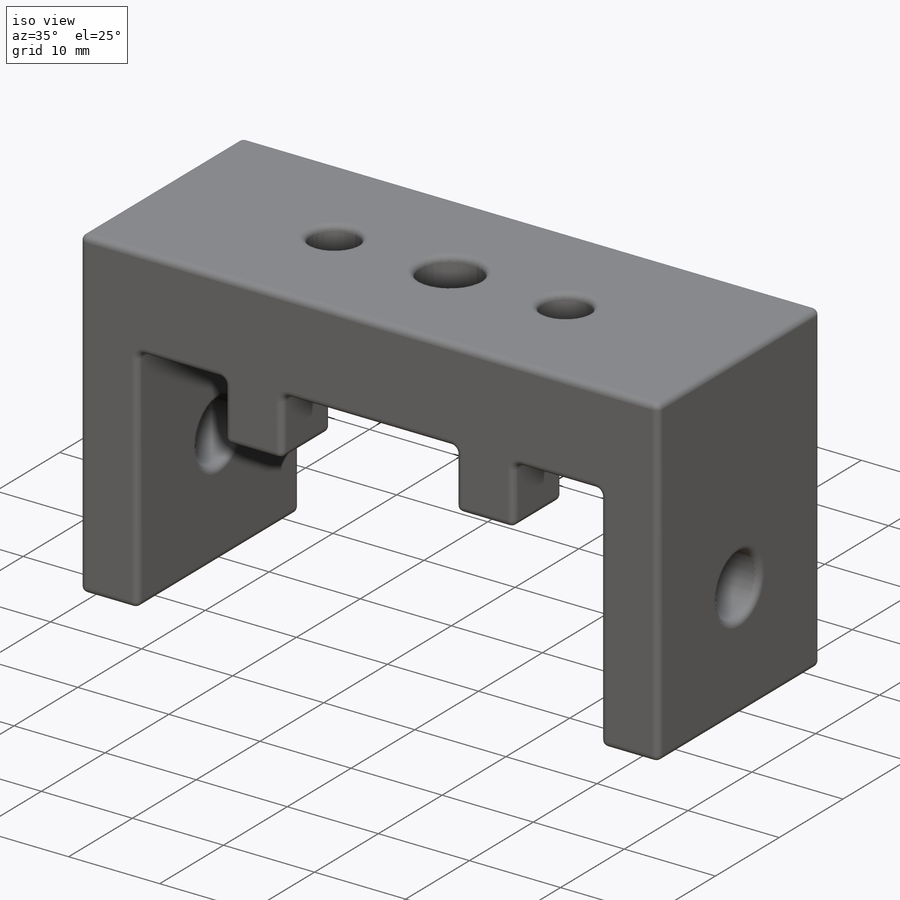
[diagram: iso view]
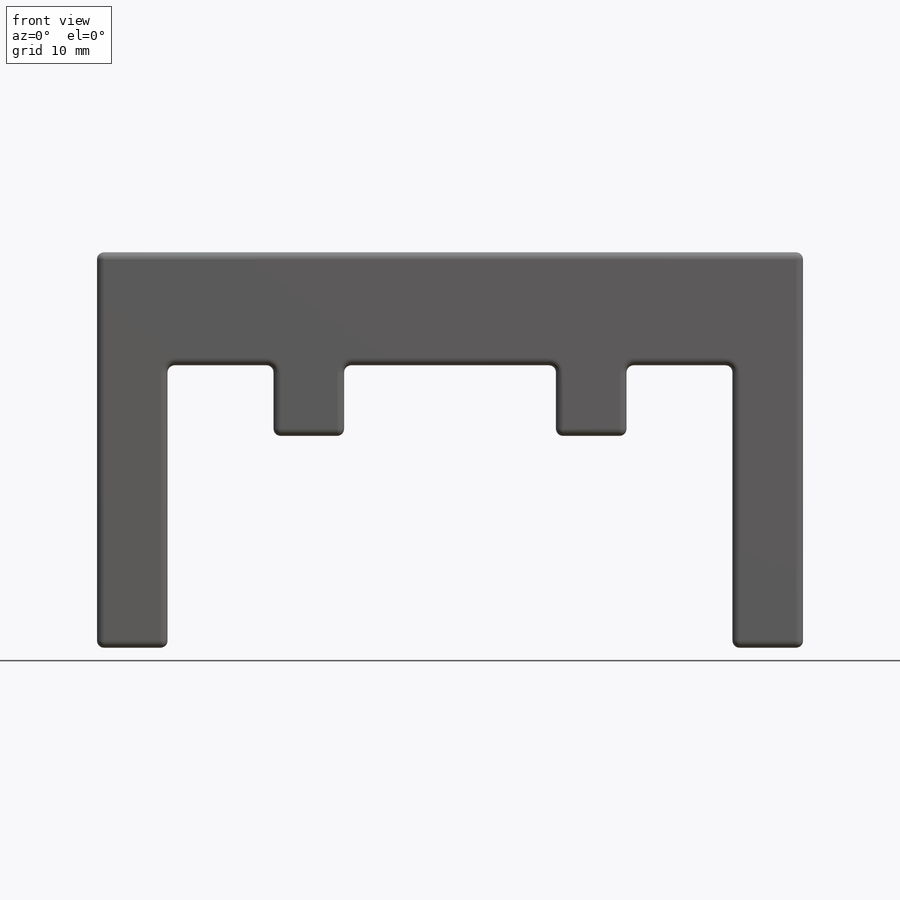
[diagram: front view]
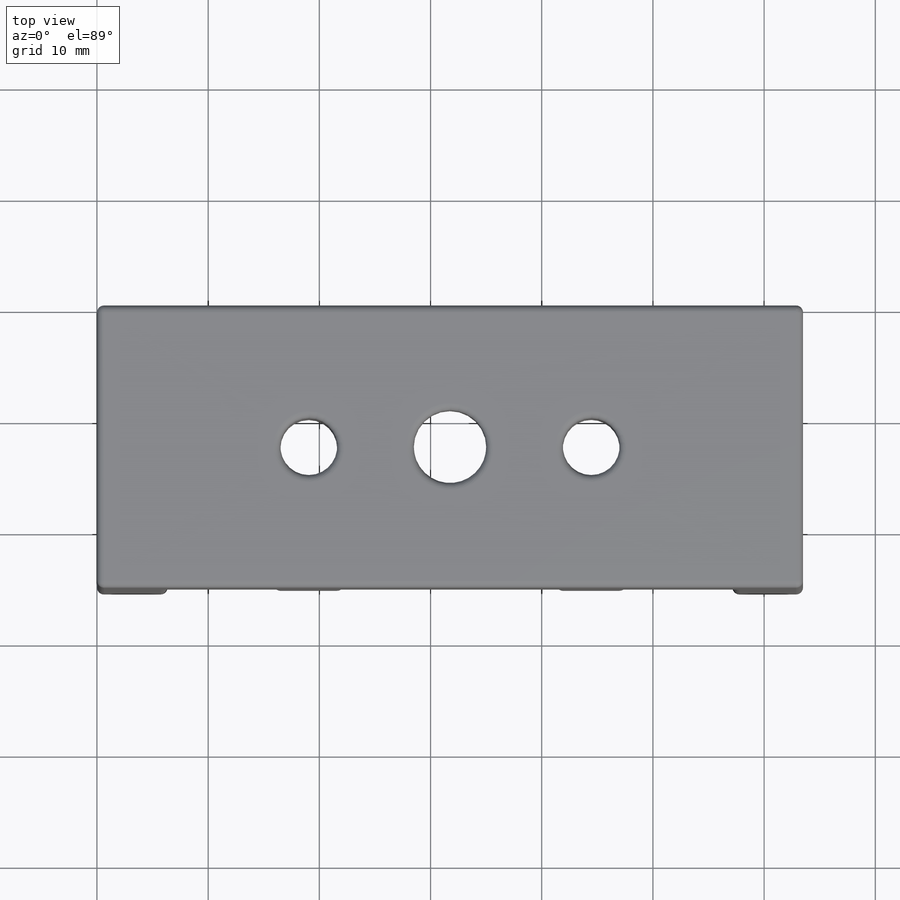
[diagram: top view]
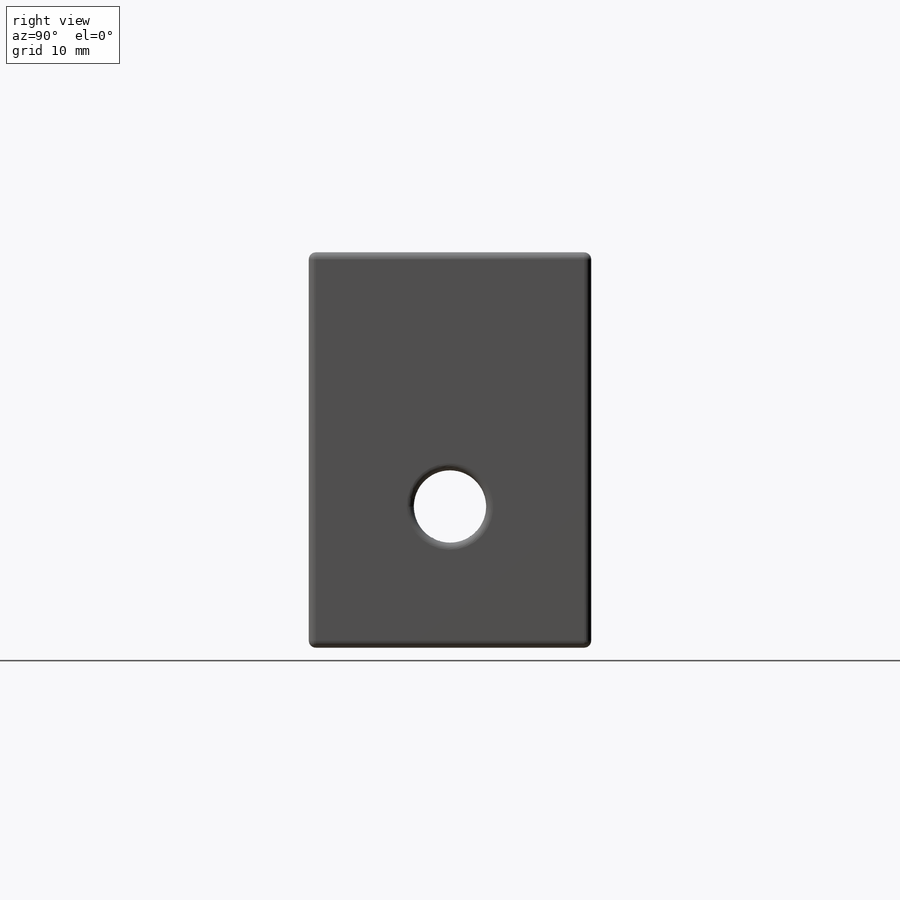
[diagram: right view]
SOLIDWORKS PART (.sldprt)
format: sldprt  version: not decoded by parser v0  size: 705,536 bytes
history: native  units: mm
features: sketch x11, hole x4, extrude x3, mirror x3, plane x2, material x1, thread x1, fillet x1, boolean_combine x1 (+16 scaffold rows collapsed)
feature tree (43):
  scaffold x16  (default folders/planes/origin — collapsed)
  material  "Material <not specified>"
  sketch  "Sketch1"  dims[D1=6.35mm D2=6.35mm D3=50.8mm D4=63.5mm D5=35.56mm D6=25.4mm]
  extrude  "Boss-Extrude1"  Depth=25.4mm
  sketch  "Sketch2"  dims[D1=6.35mm D2=7.62mm D3=12.7mm]
  extrude  "Boss-Extrude2"  Depth=6.35mm
  plane  "Plane1"  Offset=12.7mm
  mirror  "Mirror1"
  hole  "1/4-20 Tapped Hole1"  Diameter=5.1054mm Depth=35.56mm
  sketch  "Sketch4"  dims[D1=12.7mm D2=19.05mm]
  sketch  "Sketch3"  dims[hole-wizard template sketch: 60 standard entries collapsed; hole parameters kept: c18.Thru Tap Drill Depth=35.56mm]
  thread  "Hole Thread1"  Diameter=6.35mm  [1 undecoded]
  hole  "#97 (0.0059) Diameter Hole1"  Diameter=6.5278mm Depth=6.35mm
  sketch  "Sketch6"  dims[D1=12.7mm D2=12.7mm]
  sketch  "Sketch5"  dims[hole-wizard template sketch: 61 standard entries collapsed; hole parameters above]
  hole  "#97 (0.0059) Diameter Hole2"  Diameter=6.5278mm Depth=6.35mm
  sketch  "Sketch8"  dims[D1=12.7mm D2=12.7mm]
  sketch  "Sketch7"  dims[hole-wizard template sketch: 61 standard entries collapsed; hole parameters above]
  plane  "Plane2"  Offset=31.75mm
  mirror  "Mirror2"
  mirror  "Mirror3"
  hole  "#97 (0.0059) Diameter Hole3"  Diameter=6.5278mm Depth=10.16mm
  sketch  "Sketch12"  dims[D1=12.7mm D2=25.4mm]
  sketch  "Sketch11"  dims[hole-wizard template sketch: 60 standard entries collapsed; hole parameters kept: c18.Thru Hole Depth=10.16mm]
  fillet  "Fillet2"  Radius=0.635mm
  sketch  "Sketch13"  dims[D1=10.922mm]
  extrude  "Boss-Extrude3"  Depth=5.334mm
  boolean_combine  "Combine1"
decode coverage: 20 of 24 modeling features carry decoded parameters
note: ~ marks probable driven/reference dimensions
note: 1 parameter value undecoded
summary: Diameter pulled from absorbed wizard sketch
note: suppression state not decoded; provenance and decode notes live in map.json
